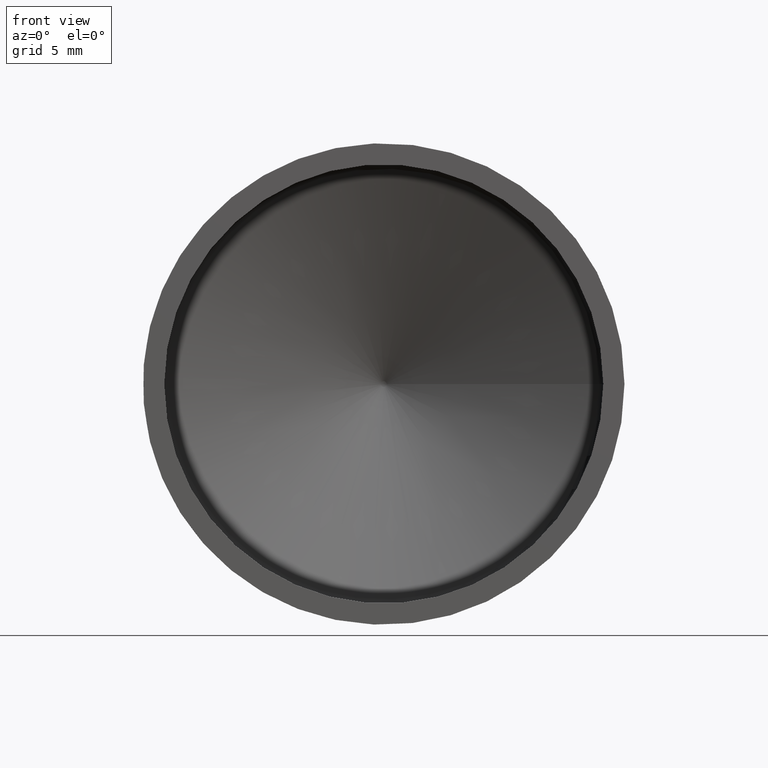
[diagram: clean part render]
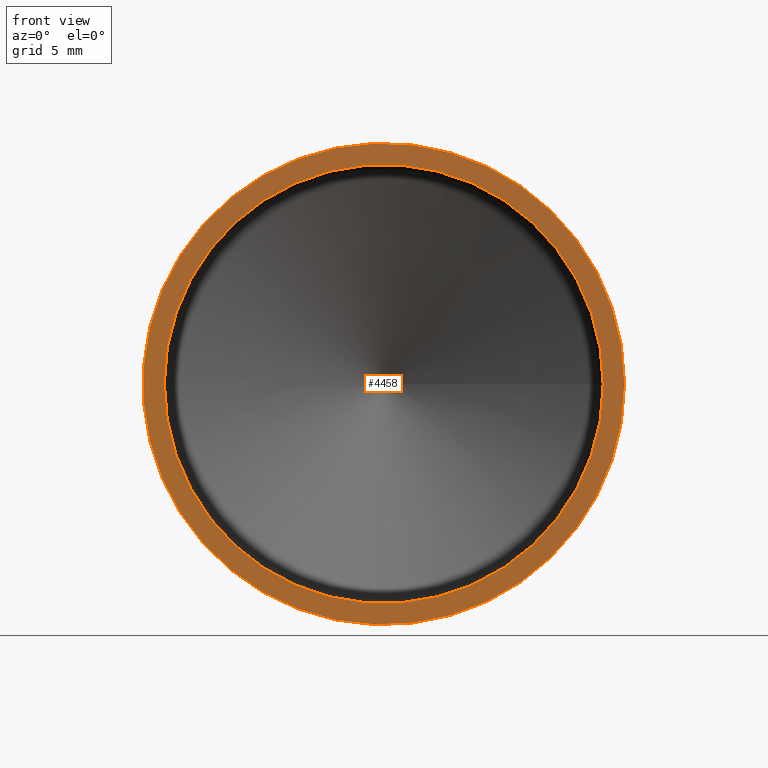
[diagram: same view with one face highlighted and labeled with its STEP entity id]
A machine part, front view. The second image highlights one B-rep face of the part: STEP entity #4458.
In plain terms, the highlighted planar face has unit normal (0, -1, -0).
Its self-contained STEP definition (entity closure, byte-faithful):
#294 = EDGE_CURVE ( 'NONE', #8925, #8925, #5830, .T. ) ;
#613 = AXIS2_PLACEMENT_3D ( 'NONE', #2611, #2637, #4103 ) ;
#1013 = AXIS2_PLACEMENT_3D ( 'NONE', #7689, #6946, #2216 ) ;
#1778 = CARTESIAN_POINT ( 'NONE',  ( 17.00000000000000000, 3.469832597584172400E-016, 0.0000000000000000000 ) ) ;
#1823 = EDGE_CURVE ( 'NONE', #6976, #6976, #3618, .T. ) ;
#2169 = FACE_OUTER_BOUND ( 'NONE', #2818, .T. ) ;
#2216 = DIRECTION ( 'NONE',  ( 1.000000000000000000, 2.041077998578925000E-017, 0.0000000000000000000 ) ) ;
#2592 = CARTESIAN_POINT ( 'NONE',  ( 15.50000000000000000, -1.530808498934194900E-017, 0.0000000000000000000 ) ) ;
#2611 = CARTESIAN_POINT ( 'NONE',  ( 3.878048197299957200E-016, 0.0000000000000000000, 0.0000000000000000000 ) ) ;
#2637 = DIRECTION ( 'NONE',  ( 2.041077998578925000E-017, -1.000000000000000000, -0.0000000000000000000 ) ) ;
#2818 = EDGE_LOOP ( 'NONE', ( #8334 ) ) ;
#3371 = DIRECTION ( 'NONE',  ( 1.000000000000000000, 2.041077998578925000E-017, 0.0000000000000000000 ) ) ;
#3618 = CIRCLE ( 'NONE', #1013, 17.00000000000000000 ) ;
#3782 = FACE_BOUND ( 'NONE', #7893, .T. ) ;
#4103 = DIRECTION ( 'NONE',  ( 1.000000000000000000, 2.041077998578925000E-017, 0.0000000000000000000 ) ) ;
#4458 = ADVANCED_FACE ( 'NONE', ( #2169, #3782 ), #4698, .T. ) ;
#4559 = CARTESIAN_POINT ( 'NONE',  ( 15.50000000000000000, 3.163670897797333500E-016, 0.0000000000000000000 ) ) ;
#4698 = PLANE ( 'NONE',  #4709 ) ;
#4709 = AXIS2_PLACEMENT_3D ( 'NONE', #2592, #5449, #3371 ) ;
#5208 = ORIENTED_EDGE ( 'NONE', *, *, #294, .F. ) ;
#5449 = DIRECTION ( 'NONE',  ( 2.041077998578925000E-017, -1.000000000000000000, -0.0000000000000000000 ) ) ;
#5830 = CIRCLE ( 'NONE', #613, 15.50000000000000000 ) ;
#6946 = DIRECTION ( 'NONE',  ( 2.041077998578925000E-017, -1.000000000000000000, -0.0000000000000000000 ) ) ;
#6976 = VERTEX_POINT ( 'NONE', #1778 ) ;
#7689 = CARTESIAN_POINT ( 'NONE',  ( 3.878048197299957200E-016, 0.0000000000000000000, 0.0000000000000000000 ) ) ;
#7893 = EDGE_LOOP ( 'NONE', ( #5208 ) ) ;
#8334 = ORIENTED_EDGE ( 'NONE', *, *, #1823, .T. ) ;
#8925 = VERTEX_POINT ( 'NONE', #4559 ) ;